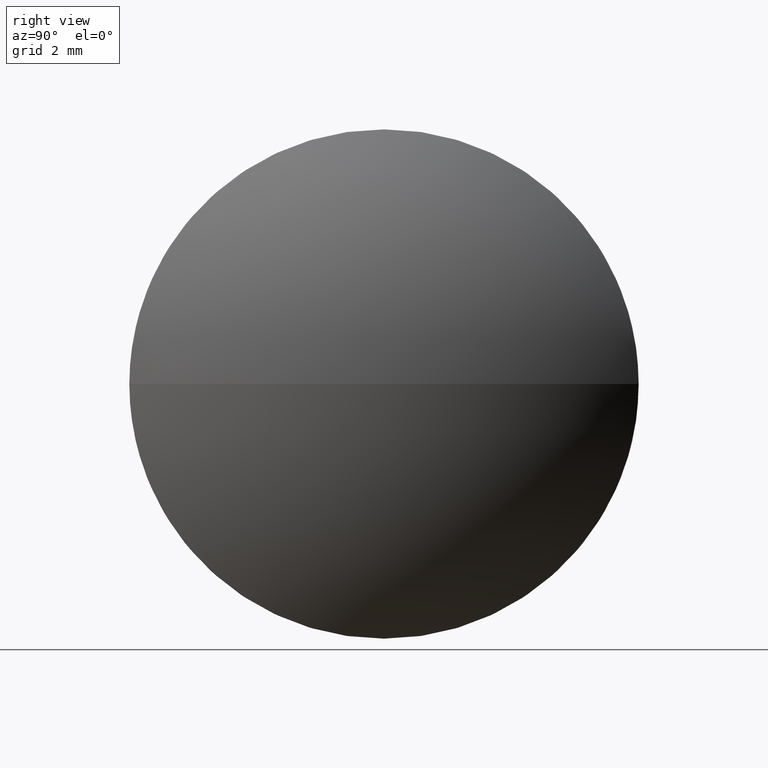
[diagram: clean part render]
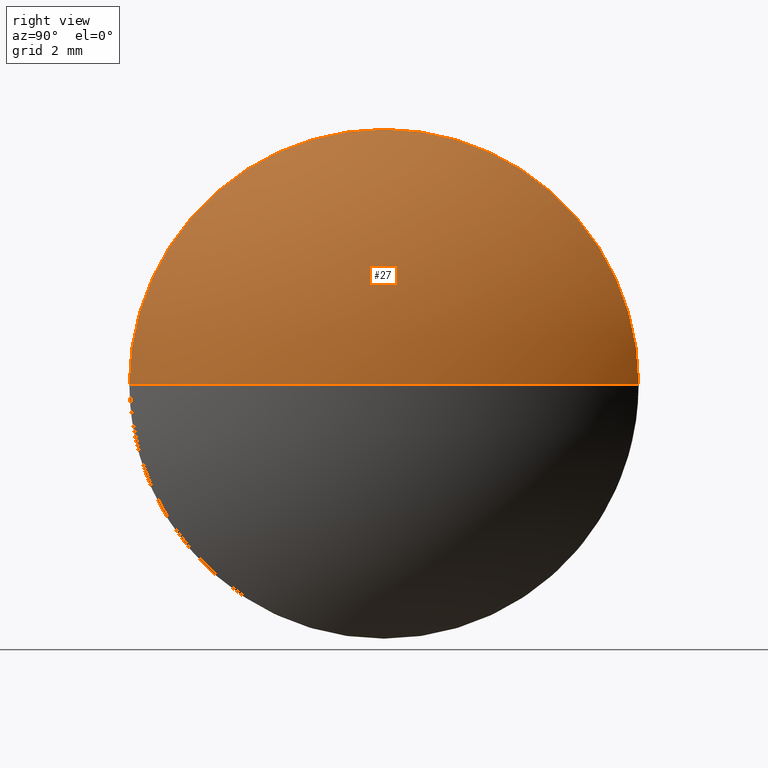
[diagram: same view with one face highlighted and labeled with its STEP entity id]
A machine part, right view. The second image highlights one B-rep face of the part: STEP entity #27.
In plain terms, the highlighted spherical surface has radius 12.9008 mm.
Its self-contained STEP definition (entity closure, byte-faithful):
#4 = VERTEX_POINT ( 'NONE', #48 ) ;
#8 = DIRECTION ( 'NONE',  ( -1.000000000000000000, -0.0000000000000000000, -0.0000000000000000000 ) ) ;
#13 = DIRECTION ( 'NONE',  ( 1.000000000000000000, 0.0000000000000000000, 0.0000000000000000000 ) ) ;
#19 = FACE_OUTER_BOUND ( 'NONE', #144, .T. ) ;
#27 = ADVANCED_FACE ( 'NONE', ( #19 ), #177, .T. ) ;
#33 = ORIENTED_EDGE ( 'NONE', *, *, #92, .F. ) ;
#35 = CARTESIAN_POINT ( 'NONE',  ( 480.4108959545010900, 109.1334144669234400, 0.0000000000000000000 ) ) ;
#36 = AXIS2_PLACEMENT_3D ( 'NONE', #175, #44, #86 ) ;
#40 = DIRECTION ( 'NONE',  ( 0.0000000000000000000, 1.000000000000000000, 0.0000000000000000000 ) ) ;
#42 = DIRECTION ( 'NONE',  ( 0.0000000000000000000, 0.0000000000000000000, 1.000000000000000000 ) ) ;
#44 = DIRECTION ( 'NONE',  ( 0.0000000000000000000, 1.224646799147353200E-016, -1.000000000000000000 ) ) ;
#48 = CARTESIAN_POINT ( 'NONE',  ( 477.6308959545011100, 101.1334144669234400, -9.797174393178839500E-016 ) ) ;
#56 = EDGE_CURVE ( 'NONE', #104, #84, #146, .T. ) ;
#69 = CIRCLE ( 'NONE', #167, 8.000000000000007100 ) ;
#84 = VERTEX_POINT ( 'NONE', #133 ) ;
#85 = CIRCLE ( 'NONE', #36, 12.90079136690652800 ) ;
#86 = DIRECTION ( 'NONE',  ( 0.0000000000000000000, 1.000000000000000000, 1.224646799147353200E-016 ) ) ;
#92 = EDGE_CURVE ( 'NONE', #4, #104, #69, .T. ) ;
#94 = CARTESIAN_POINT ( 'NONE',  ( 477.6308959545011100, 109.1334144669234500, 0.0000000000000000000 ) ) ;
#98 = EDGE_CURVE ( 'NONE', #171, #84, #110, .T. ) ;
#99 = DIRECTION ( 'NONE',  ( -1.000000000000000000, -0.0000000000000000000, -0.0000000000000000000 ) ) ;
#102 = ORIENTED_EDGE ( 'NONE', *, *, #56, .F. ) ;
#104 = VERTEX_POINT ( 'NONE', #169 ) ;
#106 = ORIENTED_EDGE ( 'NONE', *, *, #98, .T. ) ;
#110 = CIRCLE ( 'NONE', #141, 12.90079136690652800 ) ;
#111 = DIRECTION ( 'NONE',  ( 0.0000000000000000000, 0.0000000000000000000, 1.000000000000000000 ) ) ;
#115 = EDGE_CURVE ( 'NONE', #171, #4, #85, .T. ) ;
#124 = AXIS2_PLACEMENT_3D ( 'NONE', #181, #142, #40 ) ;
#133 = CARTESIAN_POINT ( 'NONE',  ( 477.6308959545011100, 117.1334144669234700, 0.0000000000000000000 ) ) ;
#141 = AXIS2_PLACEMENT_3D ( 'NONE', #159, #183, #13 ) ;
#142 = DIRECTION ( 'NONE',  ( -0.0000000000000000000, 0.0000000000000000000, -1.000000000000000000 ) ) ;
#144 = EDGE_LOOP ( 'NONE', ( #149, #106, #102, #33 ) ) ;
#146 = CIRCLE ( 'NONE', #163, 8.000000000000007100 ) ;
#149 = ORIENTED_EDGE ( 'NONE', *, *, #115, .F. ) ;
#159 = CARTESIAN_POINT ( 'NONE',  ( 467.5101045875945800, 109.1334144669234400, 0.0000000000000000000 ) ) ;
#163 = AXIS2_PLACEMENT_3D ( 'NONE', #94, #8, #111 ) ;
#167 = AXIS2_PLACEMENT_3D ( 'NONE', #168, #99, #42 ) ;
#168 = CARTESIAN_POINT ( 'NONE',  ( 477.6308959545011100, 109.1334144669234500, 0.0000000000000000000 ) ) ;
#169 = CARTESIAN_POINT ( 'NONE',  ( 477.6308959545011100, 109.1334144669234500, 8.000000000000007100 ) ) ;
#171 = VERTEX_POINT ( 'NONE', #35 ) ;
#175 = CARTESIAN_POINT ( 'NONE',  ( 467.5101045875945800, 109.1334144669234400, 0.0000000000000000000 ) ) ;
#177 = SPHERICAL_SURFACE ( 'NONE', #124, 12.90079136690652800 ) ;
#181 = CARTESIAN_POINT ( 'NONE',  ( 467.5101045875945800, 109.1334144669234400, 0.0000000000000000000 ) ) ;
#183 = DIRECTION ( 'NONE',  ( -0.0000000000000000000, 0.0000000000000000000, 1.000000000000000000 ) ) ;